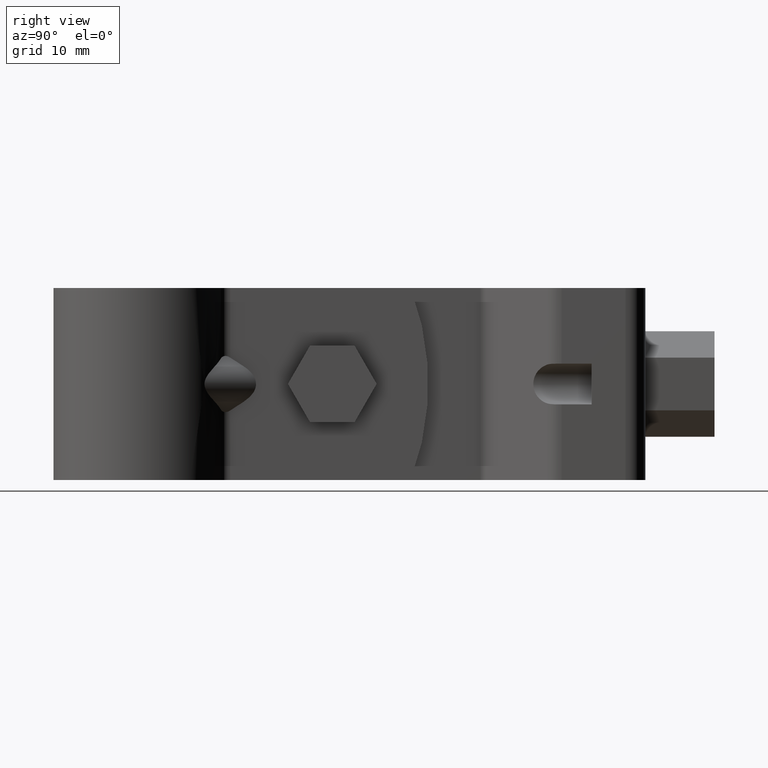
[diagram: clean part render]
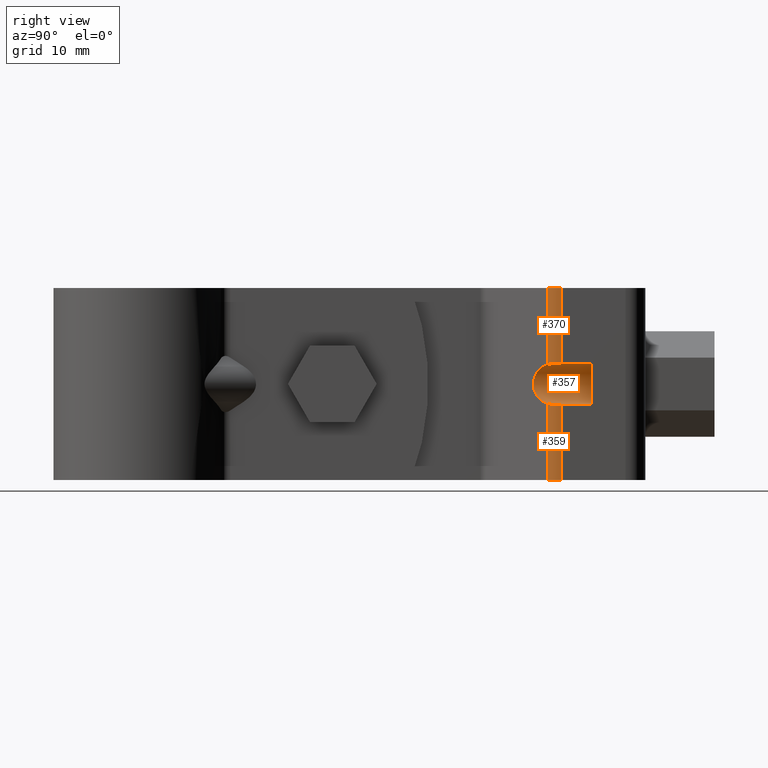
[diagram: same view with one multi-face feature highlighted, each face labeled with its STEP entity id]
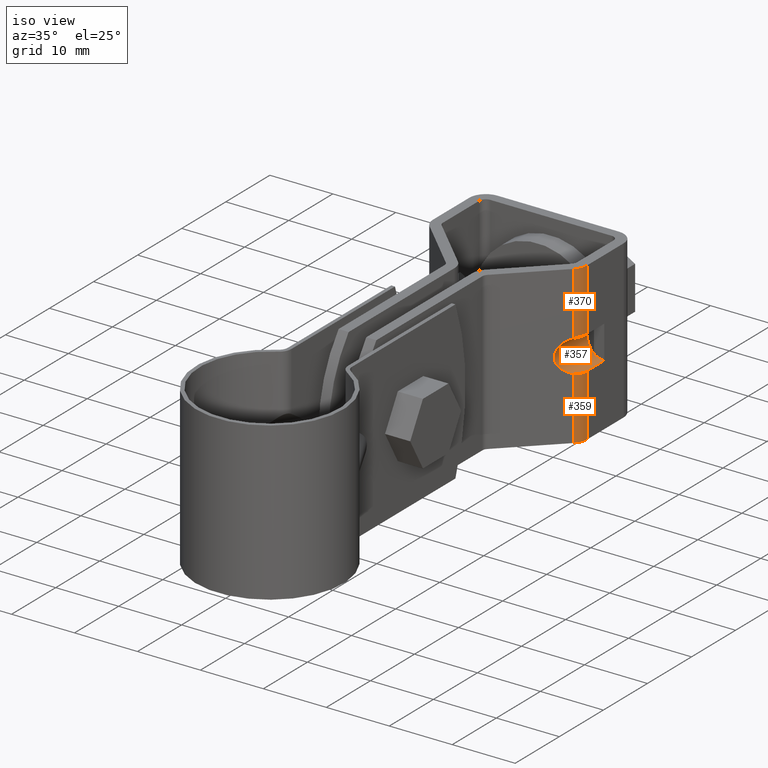
[diagram: same view with one multi-face feature highlighted, each face labeled with its STEP entity id]
A machine part, right view. The highlighted faces form ONE feature: a constant-radius fillet chain: 3 tangent blend faces with common blend radius 2.61667 mm. The faces share edges in the B-rep.
A second angle (iso view) of the same feature is appended — it is thin or edge-on in the first view.
Their STEP definitions:
[1] entity #357 (Cylinder):
#357 = ADVANCED_FACE( '', ( #588 ), #589, .F. );
#588 = FACE_OUTER_BOUND( '', #860, .T. );
#589 = CYLINDRICAL_SURFACE( '', #861, 2.64999999999997 );
#860 = EDGE_LOOP( '', ( #1667, #1668, #1669, #1670, #1671, #1672, #1673, #1674 ) );
#861 = AXIS2_PLACEMENT_3D( '', #1675, #1676, #1677 );
#1667 = ORIENTED_EDGE( '', *, *, #2190, .T. );
#1668 = ORIENTED_EDGE( '', *, *, #2191, .T. );
#1669 = ORIENTED_EDGE( '', *, *, #2192, .T. );
#1670 = ORIENTED_EDGE( '', *, *, #2193, .F. );
#1671 = ORIENTED_EDGE( '', *, *, #2188, .F. );
#1672 = ORIENTED_EDGE( '', *, *, #2194, .F. );
#1673 = ORIENTED_EDGE( '', *, *, #2195, .F. );
#1674 = ORIENTED_EDGE( '', *, *, #2196, .T. );
#1675 = CARTESIAN_POINT( '', ( 12.2500000034825, 48.4078580942101, 1.23582950817269E-006 ) );
#1676 = DIRECTION( '', ( -1.39877502405819E-011, -1.00000000000000, -9.98350074832280E-009 ) );
#1677 = DIRECTION( '', ( -1.87909263230408E-011, 9.98350074832306E-009, -1.00000000000000 ) );
#2188 = EDGE_CURVE( '', #2683, #2685, #2686, .T. );
#2190 = EDGE_CURVE( '', #2688, #2689, #2690, .T. );
#2191 = EDGE_CURVE( '', #2689, #2691, #2692, .T. );
#2192 = EDGE_CURVE( '', #2691, #2693, #2694, .T. );
#2193 = EDGE_CURVE( '', #2685, #2693, #2695, .T. );
#2194 = EDGE_CURVE( '', #2696, #2683, #2697, .T. );
#2195 = EDGE_CURVE( '', #2698, #2696, #2699, .T. );
#2196 = EDGE_CURVE( '', #2698, #2688, #2700, .T. );
#2683 = VERTEX_POINT( '', #3528 );
#2685 = VERTEX_POINT( '', #3531 );
#2686 = CIRCLE( '', #3532, 2.64999999999997 );
#2688 = VERTEX_POINT( '', #3535 );
#2689 = VERTEX_POINT( '', #3536 );
#2690 = ELLIPSE( '', #3537, 3.70224472166266, 2.64999999999997 );
#2691 = VERTEX_POINT( '', #3538 );
#2692 = B_SPLINE_CURVE_WITH_KNOTS( '', 3, ( #3539, #3540, #3541, #3542, #3543, #3544, #3545, #3546 ), .UNSPECIFIED., .F., .F., ( 4, 2, 2, 4 ), ( 1.73472347597684E-018, 0.000516787748161299, 0.00103357549632260, 0.00206715099264519 ), .UNSPECIFIED. );
#2693 = VERTEX_POINT( '', #3547 );
#2694 = LINE( '', #3548, #3549 );
#2695 = CIRCLE( '', #3550, 2.64999999999997 );
#2696 = VERTEX_POINT( '', #3551 );
#2697 = CIRCLE( '', #3552, 2.64999999999997 );
#2698 = VERTEX_POINT( '', #3553 );
#2699 = LINE( '', #3554, #3555 );
#2700 = B_SPLINE_CURVE_WITH_KNOTS( '', 3, ( #3556, #3557, #3558, #3559, #3560, #3561, #3562, #3563, #3564, #3565 ), .UNSPECIFIED., .F., .F., ( 4, 2, 2, 2, 4 ), ( 0.000000000000000, 0.000517346174284564, 0.00103469234856913, 0.00155203852285369, 0.00206938469713826 ), .UNSPECIFIED. );
#3528 = CARTESIAN_POINT( '', ( 10.6500000036621, 58.4078580731427, 2.11246435312230 ) );
#3531 = CARTESIAN_POINT( '', ( 10.6500000035828, 58.4078581153223, -2.11246168173322 ) );
#3532 = AXIS2_PLACEMENT_3D( '', #4117, #4118, #4119 );
#3535 = CARTESIAN_POINT( '', ( 11.4656419759686, 52.6426307603165, 2.53126232442032 ) );
#3536 = CARTESIAN_POINT( '', ( 11.4656419758736, 52.6426308108582, -2.53125976817616 ) );
#3537 = AXIS2_PLACEMENT_3D( '', #4121, #4122, #4123 );
#3538 = CARTESIAN_POINT( '', ( 12.2500000035181, 54.5036639197807, -2.64999870331299 ) );
#3539 = CARTESIAN_POINT( '', ( 11.4656419758736, 52.6426308108582, -2.53125976817617 ) );
#3540 = CARTESIAN_POINT( '', ( 11.5880007629262, 52.7620052321067, -2.56917489905665 ) );
#3541 = CARTESIAN_POINT( '', ( 11.6979909760781, 52.8927041977197, -2.59373738919557 ) );
#3542 = CARTESIAN_POINT( '', ( 11.8919853035435, 53.1758988189198, -2.62754885466288 ) );
#3543 = CARTESIAN_POINT( '', ( 11.9765770492478, 53.3302240175433, -2.63672398290587 ) );
#3544 = CARTESIAN_POINT( '', ( 12.1789956060202, 53.8080569495381, -2.65250306960419 ) );
#3545 = CARTESIAN_POINT( '', ( 12.2500000035132, 54.1541220777336, -2.64999870680264 ) );
#3546 = CARTESIAN_POINT( '', ( 12.2500000035181, 54.5036639197807, -2.64999870331299 ) );
#3547 = CARTESIAN_POINT( '', ( 12.2500000035727, 58.4078581206664, -2.64999866433546 ) );
#3548 = CARTESIAN_POINT( '', ( 12.2500000034328, 48.4078581206664, -2.64999876417046 ) );
#3549 = VECTOR( '', #4124, 1000.00000000000 );
#3550 = AXIS2_PLACEMENT_3D( '', #4125, #4126, #4127 );
#3551 = CARTESIAN_POINT( '', ( 12.2500000036722, 58.4078580677538, 2.65000133566448 ) );
#3552 = AXIS2_PLACEMENT_3D( '', #4128, #4129, #4130 );
#3553 = CARTESIAN_POINT( '', ( 12.2500000036176, 54.5036638668682, 2.65000129668695 ) );
#3554 = CARTESIAN_POINT( '', ( 12.2500000035323, 48.4078580677539, 2.65000123582948 ) );
#3555 = VECTOR( '', #4131, 1000.00000000000 );
#3556 = CARTESIAN_POINT( '', ( 12.2500000036176, 54.5036638668682, 2.65000129668695 ) );
#3557 = CARTESIAN_POINT( '', ( 12.2500000036151, 54.3287738026199, 2.65000129494094 ) );
#3558 = CARTESIAN_POINT( '', ( 12.2325330390210, 54.1568313947130, 2.65016498922945 ) );
#3559 = CARTESIAN_POINT( '', ( 12.1640563560555, 53.8186162047192, 2.64882865302713 ) );
#3560 = CARTESIAN_POINT( '', ( 12.1121297153086, 53.6504853564534, 2.64727724103654 ) );
#3561 = CARTESIAN_POINT( '', ( 11.9772119396858, 53.3314519013261, 2.63679192119769 ) );
#3562 = CARTESIAN_POINT( '', ( 11.8947254740597, 53.1804406820645, 2.62792906696595 ) );
#3563 = CARTESIAN_POINT( '', ( 11.7003962072431, 52.8956876725849, 2.59425649044439 ) );
#3564 = CARTESIAN_POINT( '', ( 11.5880224334498, 52.7620263226870, 2.56918417266239 ) );
#3565 = CARTESIAN_POINT( '', ( 11.4656419759686, 52.6426307603165, 2.53126232442032 ) );
#4117 = CARTESIAN_POINT( '', ( 12.2500000036224, 58.4078580942101, 1.33566450954969E-006 ) );
#4118 = DIRECTION( '', ( -1.39877502405819E-011, -1.00000000000000, -9.98350074832280E-009 ) );
#4119 = DIRECTION( '', ( -1.87693241061702E-011, 9.98350074832307E-009, -1.00000000000000 ) );
#4121 = CARTESIAN_POINT( '', ( 12.2500000035525, 53.4078580942103, 1.28574700886119E-006 ) );
#4122 = DIRECTION( '', ( 0.698323835520487, -0.715781964528275, -7.15911726152397E-009 ) );
#4123 = DIRECTION( '', ( 0.715781964528275, 0.698323835520487, 6.95828136377368E-009 ) );
#4124 = DIRECTION( '', ( 1.39877502405819E-011, 1.00000000000000, 9.98350074832280E-009 ) );
#4125 = CARTESIAN_POINT( '', ( 12.2500000036224, 58.4078580942101, 1.33566450954969E-006 ) );
#4126 = DIRECTION( '', ( -1.39877502405819E-011, -1.00000000000000, -9.98350074832280E-009 ) );
#4127 = DIRECTION( '', ( -1.87693241061702E-011, 9.98350074832307E-009, -1.00000000000000 ) );
#4128 = CARTESIAN_POINT( '', ( 12.2500000036224, 58.4078580942101, 1.33566450954969E-006 ) );
#4129 = DIRECTION( '', ( -1.39877502405819E-011, -1.00000000000000, -9.98350074832280E-009 ) );
#4130 = DIRECTION( '', ( -1.87693241061702E-011, 9.98350074832307E-009, -1.00000000000000 ) );
#4131 = DIRECTION( '', ( 1.39877502405819E-011, 1.00000000000000, 9.98350074832280E-009 ) );
[2] entity #370 (Cylinder):
#370 = ADVANCED_FACE( '', ( #617 ), #618, .T. );
#617 = FACE_OUTER_BOUND( '', #889, .T. );
#618 = CYLINDRICAL_SURFACE( '', #890, 2.59999999999999 );
#889 = EDGE_LOOP( '', ( #1798, #1799, #1800, #1801 ) );
#890 = AXIS2_PLACEMENT_3D( '', #1802, #1803, #1804 );
#1798 = ORIENTED_EDGE( '', *, *, #2224, .F. );
#1799 = ORIENTED_EDGE( '', *, *, #2196, .F. );
#1800 = ORIENTED_EDGE( '', *, *, #2223, .T. );
#1801 = ORIENTED_EDGE( '', *, *, #2216, .F. );
#1802 = CARTESIAN_POINT( '', ( 9.65000000333321, 54.5036640181547, -12.4999987032642 ) );
#1803 = DIRECTION( '', ( -1.87698704392248E-011, 9.98350074832307E-009, -1.00000000000000 ) );
#1804 = DIRECTION( '', ( 1.39877502405819E-011, 1.00000000000000, 9.98350074832280E-009 ) );
#2196 = EDGE_CURVE( '', #2698, #2688, #2700, .T. );
#2216 = EDGE_CURVE( '', #2725, #2727, #2728, .T. );
#2223 = EDGE_CURVE( '', #2698, #2727, #2738, .T. );
#2224 = EDGE_CURVE( '', #2688, #2725, #2739, .T. );
#2688 = VERTEX_POINT( '', #3535 );
#2698 = VERTEX_POINT( '', #3553 );
#2700 = B_SPLINE_CURVE_WITH_KNOTS( '', 3, ( #3556, #3557, #3558, #3559, #3560, #3561, #3562, #3563, #3564, #3565 ), .UNSPECIFIED., .F., .F., ( 4, 2, 2, 2, 4 ), ( 0.000000000000000, 0.000517346174284564, 0.00103469234856913, 0.00155203852285369, 0.00206938469713826 ), .UNSPECIFIED. );
#2725 = VERTEX_POINT( '', #3604 );
#2727 = VERTEX_POINT( '', #3607 );
#2728 = CIRCLE( '', #3608, 2.59999999999999 );
#2738 = LINE( '', #3621, #3622 );
#2739 = LINE( '', #3623, #3624 );
#3535 = CARTESIAN_POINT( '', ( 11.4656419759686, 52.6426307603165, 2.53126232442032 ) );
#3553 = CARTESIAN_POINT( '', ( 12.2500000036176, 54.5036638668682, 2.65000129668695 ) );
#3556 = CARTESIAN_POINT( '', ( 12.2500000036176, 54.5036638668682, 2.65000129668695 ) );
#3557 = CARTESIAN_POINT( '', ( 12.2500000036151, 54.3287738026199, 2.65000129494094 ) );
#3558 = CARTESIAN_POINT( '', ( 12.2325330390210, 54.1568313947130, 2.65016498922945 ) );
#3559 = CARTESIAN_POINT( '', ( 12.1640563560555, 53.8186162047192, 2.64882865302713 ) );
#3560 = CARTESIAN_POINT( '', ( 12.1121297153086, 53.6504853564534, 2.64727724103654 ) );
#3561 = CARTESIAN_POINT( '', ( 11.9772119396858, 53.3314519013261, 2.63679192119769 ) );
#3562 = CARTESIAN_POINT( '', ( 11.8947254740597, 53.1804406820645, 2.62792906696595 ) );
#3563 = CARTESIAN_POINT( '', ( 11.7003962072431, 52.8956876725849, 2.59425649044439 ) );
#3564 = CARTESIAN_POINT( '', ( 11.5880224334498, 52.7620263226870, 2.56918417266239 ) );
#3565 = CARTESIAN_POINT( '', ( 11.4656419759686, 52.6426307603165, 2.53126232442032 ) );
#3604 = CARTESIAN_POINT( '', ( 11.4656419761557, 52.6426306607937, 12.5000012781221 ) );
#3607 = CARTESIAN_POINT( '', ( 12.2500000038025, 54.5036637685308, 12.5000012966870 ) );
#3608 = AXIS2_PLACEMENT_3D( '', #4159, #4160, #4161 );
#3621 = CARTESIAN_POINT( '', ( 12.2500000033332, 54.5036640181183, -12.4999987033130 ) );
#3622 = VECTOR( '', #4174, 1000.00000000000 );
#3623 = CARTESIAN_POINT( '', ( 11.4656419756865, 52.6426309103812, -12.4999987218779 ) );
#3624 = VECTOR( '', #4175, 1000.00000000000 );
#4159 = CARTESIAN_POINT( '', ( 9.65000000380246, 54.5036637685672, 12.5000012967358 ) );
#4160 = DIRECTION( '', ( 1.87698704392248E-011, -9.98350074832307E-009, 1.00000000000000 ) );
#4161 = DIRECTION( '', ( 0.698323835520490, -0.715781964528272, -7.15911722642150E-009 ) );
#4174 = DIRECTION( '', ( 1.87698704392248E-011, -9.98350074832307E-009, 1.00000000000000 ) );
#4175 = DIRECTION( '', ( 1.87698704392248E-011, -9.98350074832307E-009, 1.00000000000000 ) );
[3] entity #359 (Cylinder):
#359 = ADVANCED_FACE( '', ( #592 ), #593, .T. );
#592 = FACE_OUTER_BOUND( '', #864, .T. );
#593 = CYLINDRICAL_SURFACE( '', #865, 2.59999999999999 );
#864 = EDGE_LOOP( '', ( #1685, #1686, #1687, #1688 ) );
#865 = AXIS2_PLACEMENT_3D( '', #1689, #1690, #1691 );
#1685 = ORIENTED_EDGE( '', *, *, #2199, .T. );
#1686 = ORIENTED_EDGE( '', *, *, #2191, .F. );
#1687 = ORIENTED_EDGE( '', *, *, #2200, .F. );
#1688 = ORIENTED_EDGE( '', *, *, #2118, .T. );
#1689 = CARTESIAN_POINT( '', ( 9.65000000333321, 54.5036640181547, -12.4999987032642 ) );
#1690 = DIRECTION( '', ( -1.87698704392248E-011, 9.98350074832307E-009, -1.00000000000000 ) );
#1691 = DIRECTION( '', ( 1.39877502405819E-011, 1.00000000000000, 9.98350074832280E-009 ) );
#2118 = EDGE_CURVE( '', #2568, #2566, #2569, .T. );
#2191 = EDGE_CURVE( '', #2689, #2691, #2692, .T. );
#2199 = EDGE_CURVE( '', #2566, #2691, #2703, .T. );
#2200 = EDGE_CURVE( '', #2568, #2689, #2704, .T. );
#2566 = VERTEX_POINT( '', #3334 );
#2568 = VERTEX_POINT( '', #3337 );
#2569 = CIRCLE( '', #3338, 2.59999999999999 );
#2689 = VERTEX_POINT( '', #3536 );
#2691 = VERTEX_POINT( '', #3538 );
#2692 = B_SPLINE_CURVE_WITH_KNOTS( '', 3, ( #3539, #3540, #3541, #3542, #3543, #3544, #3545, #3546 ), .UNSPECIFIED., .F., .F., ( 4, 2, 2, 4 ), ( 1.73472347597684E-018, 0.000516787748161299, 0.00103357549632260, 0.00206715099264519 ), .UNSPECIFIED. );
#2703 = LINE( '', #3570, #3571 );
#2704 = LINE( '', #3572, #3573 );
#3334 = CARTESIAN_POINT( '', ( 12.2500000033332, 54.5036640181183, -12.4999987033130 ) );
#3337 = CARTESIAN_POINT( '', ( 11.4656419756865, 52.6426309103812, -12.4999987218779 ) );
#3338 = AXIS2_PLACEMENT_3D( '', #4007, #4008, #4009 );
#3536 = CARTESIAN_POINT( '', ( 11.4656419758736, 52.6426308108582, -2.53125976817616 ) );
#3538 = CARTESIAN_POINT( '', ( 12.2500000035181, 54.5036639197807, -2.64999870331299 ) );
#3539 = CARTESIAN_POINT( '', ( 11.4656419758736, 52.6426308108582, -2.53125976817617 ) );
#3540 = CARTESIAN_POINT( '', ( 11.5880007629262, 52.7620052321067, -2.56917489905665 ) );
#3541 = CARTESIAN_POINT( '', ( 11.6979909760781, 52.8927041977197, -2.59373738919557 ) );
#3542 = CARTESIAN_POINT( '', ( 11.8919853035435, 53.1758988189198, -2.62754885466288 ) );
#3543 = CARTESIAN_POINT( '', ( 11.9765770492478, 53.3302240175433, -2.63672398290587 ) );
#3544 = CARTESIAN_POINT( '', ( 12.1789956060202, 53.8080569495381, -2.65250306960419 ) );
#3545 = CARTESIAN_POINT( '', ( 12.2500000035132, 54.1541220777336, -2.64999870680264 ) );
#3546 = CARTESIAN_POINT( '', ( 12.2500000035181, 54.5036639197807, -2.64999870331299 ) );
#3570 = CARTESIAN_POINT( '', ( 12.2500000033332, 54.5036640181183, -12.4999987033130 ) );
#3571 = VECTOR( '', #4134, 1000.00000000000 );
#3572 = CARTESIAN_POINT( '', ( 11.4656419756865, 52.6426309103812, -12.4999987218779 ) );
#3573 = VECTOR( '', #4135, 1000.00000000000 );
#4007 = CARTESIAN_POINT( '', ( 9.65000000333321, 54.5036640181547, -12.4999987032642 ) );
#4008 = DIRECTION( '', ( 1.87698704392248E-011, -9.98350074832307E-009, 1.00000000000000 ) );
#4009 = DIRECTION( '', ( 0.698323835520490, -0.715781964528272, -7.15911722642150E-009 ) );
#4134 = DIRECTION( '', ( 1.87698704392248E-011, -9.98350074832307E-009, 1.00000000000000 ) );
#4135 = DIRECTION( '', ( 1.87698704392248E-011, -9.98350074832307E-009, 1.00000000000000 ) );